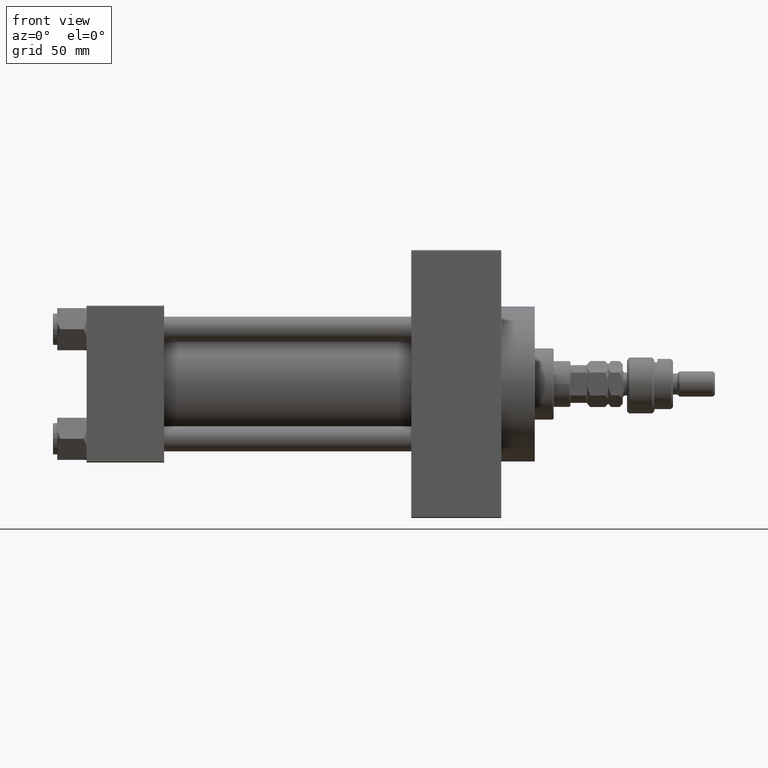
[diagram: clean part render]
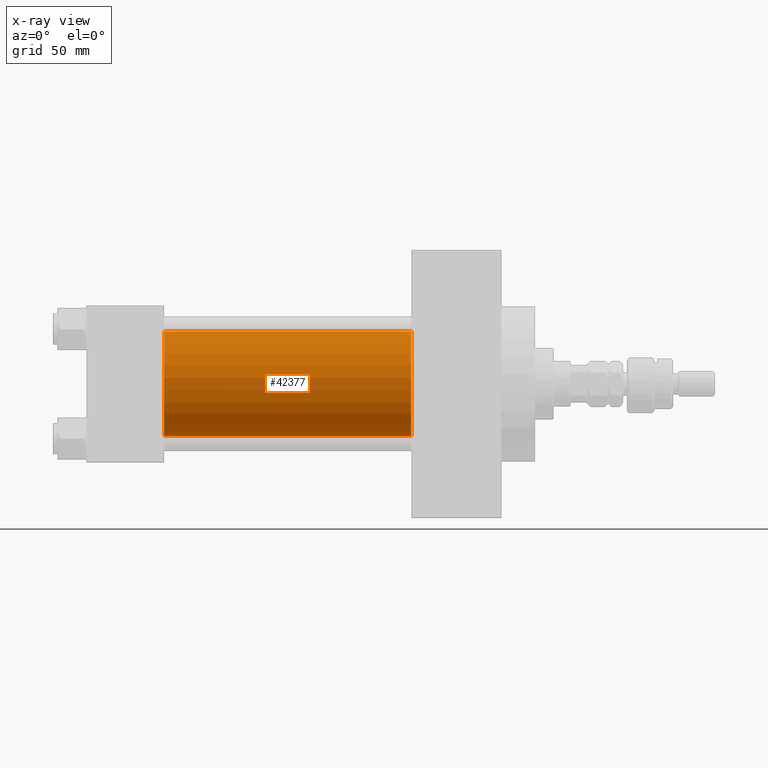
[diagram: x-ray — body ghosted, one internal face saturated and labeled with its STEP entity id]
A machine part, front view, then the same camera in x-ray: the body is ghosted and one INTERNAL B-rep face — a face not visible from any outside direction — is saturated and labeled: STEP entity #42377.
In plain terms, the highlighted cylindrical surface (partial cylindrical patch) has radius 25 mm, axis along (-1, -0, -0).
Its self-contained STEP definition (entity closure, byte-faithful):
#1135 = ORIENTED_EDGE ( 'NONE', *, *, #49675, .T. ) ;
#1359 = DIRECTION ( 'NONE',  ( -1.000000000000000000, -0.000000000000000000, -0.000000000000000000 ) ) ;
#1864 = DIRECTION ( 'NONE',  ( 0.000000000000000000, 0.000000000000000000, 1.000000000000000000 ) ) ;
#3420 = CARTESIAN_POINT ( 'NONE',  ( 155.0000000000000000, 4.595317839031724996E-16, -25.00000000000000000 ) ) ;
#5597 = CARTESIAN_POINT ( 'NONE',  ( 37.00000000000000000, 4.595317839031724996E-16, -25.00000000000000000 ) ) ;
#6573 = LINE ( 'NONE', #14421, #43485 ) ;
#10213 = FACE_OUTER_BOUND ( 'NONE', #35375, .T. ) ;
#11691 = CIRCLE ( 'NONE', #48861, 25.00000000000000000 ) ;
#12772 = EDGE_CURVE ( 'NONE', #32528, #19371, #6573, .T. ) ;
#12870 = ORIENTED_EDGE ( 'NONE', *, *, #12772, .F. ) ;
#13009 = DIRECTION ( 'NONE',  ( -1.000000000000000000, -0.000000000000000000, -0.000000000000000000 ) ) ;
#14421 = CARTESIAN_POINT ( 'NONE',  ( 155.0000000000000000, -2.602085213965210642E-15, 25.00000000000000000 ) ) ;
#14931 = VERTEX_POINT ( 'NONE', #5597 ) ;
#17230 = DIRECTION ( 'NONE',  ( 1.000000000000000000, 0.000000000000000000, 0.000000000000000000 ) ) ;
#18037 = DIRECTION ( 'NONE',  ( 1.000000000000000000, 0.000000000000000000, 0.000000000000000000 ) ) ;
#19371 = VERTEX_POINT ( 'NONE', #39479 ) ;
#19434 = EDGE_CURVE ( 'NONE', #19371, #14931, #49392, .T. ) ;
#20857 = CARTESIAN_POINT ( 'NONE',  ( 155.0000000000000000, 4.595317839031724996E-16, -25.00000000000000000 ) ) ;
#21111 = CARTESIAN_POINT ( 'NONE',  ( 155.0000000000000000, -2.602085213965210642E-15, 0.000000000000000000 ) ) ;
#21936 = AXIS2_PLACEMENT_3D ( 'NONE', #44283, #17230, #40240 ) ;
#22285 = LINE ( 'NONE', #20857, #40720 ) ;
#26611 = DIRECTION ( 'NONE',  ( 0.000000000000000000, 0.000000000000000000, -1.000000000000000000 ) ) ;
#27049 = VERTEX_POINT ( 'NONE', #3420 ) ;
#29653 = AXIS2_PLACEMENT_3D ( 'NONE', #21111, #13009, #1864 ) ;
#32528 = VERTEX_POINT ( 'NONE', #33821 ) ;
#33821 = CARTESIAN_POINT ( 'NONE',  ( 155.0000000000000000, -2.602085213965210642E-15, 25.00000000000000000 ) ) ;
#34121 = DIRECTION ( 'NONE',  ( -1.000000000000000000, -0.000000000000000000, -0.000000000000000000 ) ) ;
#35375 = EDGE_LOOP ( 'NONE', ( #37614, #1135, #39212, #12870 ) ) ;
#37090 = EDGE_CURVE ( 'NONE', #32528, #27049, #11691, .T. ) ;
#37614 = ORIENTED_EDGE ( 'NONE', *, *, #37090, .T. ) ;
#39212 = ORIENTED_EDGE ( 'NONE', *, *, #19434, .F. ) ;
#39479 = CARTESIAN_POINT ( 'NONE',  ( 37.00000000000000000, -2.602085213965210642E-15, 25.00000000000000000 ) ) ;
#40240 = DIRECTION ( 'NONE',  ( 0.000000000000000000, 0.000000000000000000, -1.000000000000000000 ) ) ;
#40720 = VECTOR ( 'NONE', #1359, 1000.000000000000000 ) ;
#41770 = CARTESIAN_POINT ( 'NONE',  ( 155.0000000000000000, -2.602085213965210642E-15, 0.000000000000000000 ) ) ;
#42377 = ADVANCED_FACE ( 'NONE', ( #10213 ), #47650, .F. ) ;
#43485 = VECTOR ( 'NONE', #34121, 1000.000000000000000 ) ;
#44283 = CARTESIAN_POINT ( 'NONE',  ( 37.00000000000000000, -2.602085213965210642E-15, 0.000000000000000000 ) ) ;
#47650 = CYLINDRICAL_SURFACE ( 'NONE', #29653, 25.00000000000000000 ) ;
#48861 = AXIS2_PLACEMENT_3D ( 'NONE', #41770, #18037, #26611 ) ;
#49392 = CIRCLE ( 'NONE', #21936, 25.00000000000000000 ) ;
#49675 = EDGE_CURVE ( 'NONE', #27049, #14931, #22285, .T. ) ;